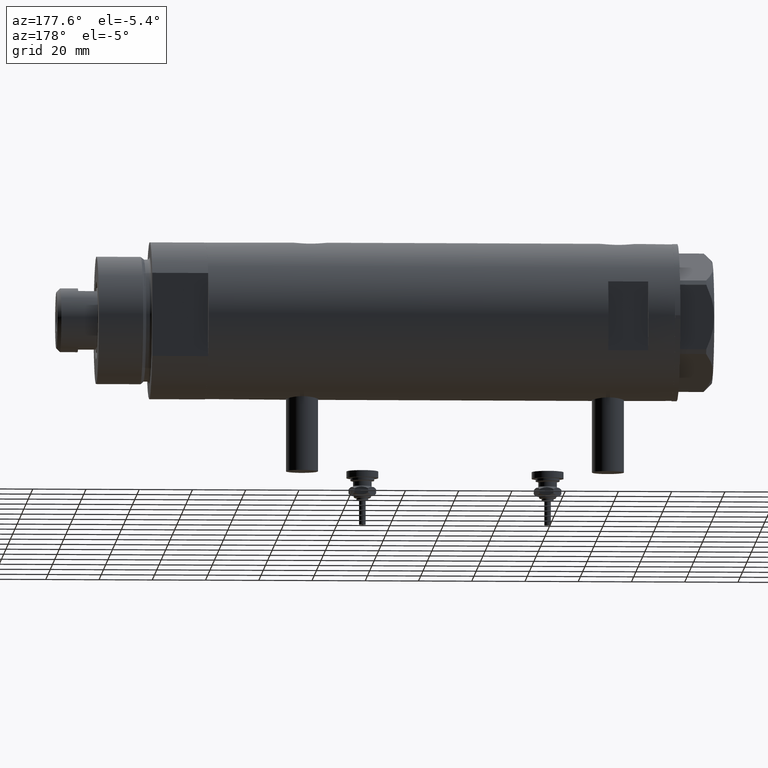
[diagram: clean part render]
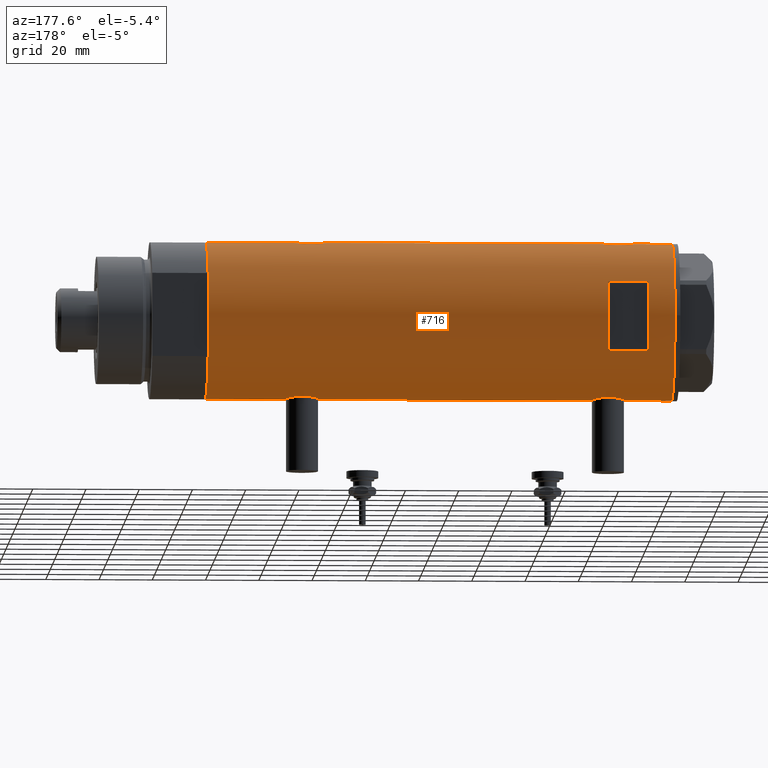
[diagram: same view with one face highlighted and labeled with its STEP entity id]
A machine part, auxiliary view. The second image highlights one B-rep face of the part: STEP entity #716.
In plain terms, the highlighted cylindrical surface (partial cylindrical patch) has radius 29.5 mm, axis along (-1, -0, 0).
Its self-contained STEP definition (entity closure, byte-faithful):
#43 = ORIENTED_EDGE ( 'NONE', *, *, #1118, .F. ) ;
#101 = DIRECTION ( 'NONE',  ( 1.000000000000000000, 0.000000000000000000, 0.000000000000000000 ) ) ;
#120 = CARTESIAN_POINT ( 'NONE',  ( 29.48742029994219038, 0.9867701249543437969, -55.85094507494218163 ) ) ;
#130 = CARTESIAN_POINT ( 'NONE',  ( -29.07940225710134996, 4.969011347753393260, -55.11269734470185000 ) ) ;
#140 = CARTESIAN_POINT ( 'NONE',  ( 29.43668864566816268, 1.946133027943908855, 59.85269087298998869 ) ) ;
#153 = LINE ( 'NONE', #1921, #3605 ) ;
#154 = CARTESIAN_POINT ( 'NONE',  ( 28.65280969280606982, 7.019670864411686750, -51.05213168683109615 ) ) ;
#163 = VERTEX_POINT ( 'NONE', #5422 ) ;
#166 = CARTESIAN_POINT ( 'NONE',  ( -28.86473101544359210, 6.089252369705496548, -49.87667050833969284 ) ) ;
#174 = VECTOR ( 'NONE', #2919, 1000.000000000000000 ) ;
#194 = CARTESIAN_POINT ( 'NONE',  ( -12.96148139681573319, 26.49999999999998934, 77.60000000000002274 ) ) ;
#202 = CARTESIAN_POINT ( 'NONE',  ( 29.08204711695421452, 4.951923910293527520, 61.46183978405700543 ) ) ;
#229 = AXIS2_PLACEMENT_3D ( 'NONE', #2140, #375, #1333 ) ;
#336 = CARTESIAN_POINT ( 'NONE',  ( -29.37021410611213312, 2.770135525807581711, 57.99365930977168659 ) ) ;
#346 = CARTESIAN_POINT ( 'NONE',  ( 28.86328010881651451, 6.097564286278104539, 71.47368290922693745 ) ) ;
#375 = DIRECTION ( 'NONE',  ( 0.000000000000000000, 0.000000000000000000, 1.000000000000000000 ) ) ;
#400 = CARTESIAN_POINT ( 'NONE',  ( -29.49128627113591605, 0.8212788586050359108, 69.80923124908871102 ) ) ;
#410 = CARTESIAN_POINT ( 'NONE',  ( 29.48463566286631377, 0.9832945201638393362, 74.53937451762291744 ) ) ;
#502 = CARTESIAN_POINT ( 'NONE',  ( -29.46640581083894261, 1.421634556901805402, -45.21041108910578998 ) ) ;
#518 = ORIENTED_EDGE ( 'NONE', *, *, #2121, .F. ) ;
#524 = CARTESIAN_POINT ( 'NONE',  ( 29.50000000000000355, 0.000000000000000000, -87.59999999999999432 ) ) ;
#541 = LINE ( 'NONE', #2453, #4188 ) ;
#548 = EDGE_CURVE ( 'NONE', #5663, #1380, #5039, .T. ) ;
#595 = CARTESIAN_POINT ( 'NONE',  ( -28.99817753551065280, 5.423057650933445828, -48.16603848537405952 ) ) ;
#613 = CARTESIAN_POINT ( 'NONE',  ( 29.40165444879503909, 2.418426732012822100, -55.50367056434786406 ) ) ;
#622 = CARTESIAN_POINT ( 'NONE',  ( -29.48289442777307201, 1.024392307325228124, -57.46888222528699686 ) ) ;
#629 = CARTESIAN_POINT ( 'NONE',  ( 29.31463363472445849, 3.333180401682676930, 60.36343155316954068 ) ) ;
#642 = CARTESIAN_POINT ( 'NONE',  ( 28.54372006395177763, 7.450900983269891142, -47.41234264364084794 ) ) ;
#674 = CARTESIAN_POINT ( 'NONE',  ( 28.59328333056173221, 7.258376466535469085, -46.44875332515167798 ) ) ;
#697 = CARTESIAN_POINT ( 'NONE',  ( 28.72066933684370227, 6.738715173607846332, -51.72836955953554394 ) ) ;
#707 = CARTESIAN_POINT ( 'NONE',  ( -29.31451746246149526, 3.307268797680013694, -56.60714841985004142 ) ) ;
#713 = CARTESIAN_POINT ( 'NONE',  ( 28.89325003604224307, 5.958922200807243996, 62.51915213504485536 ) ) ;
#716 = ADVANCED_FACE ( 'NONE', ( #1841, #4225 ), #5507, .T. ) ;
#724 = CARTESIAN_POINT ( 'NONE',  ( 29.14546206473282197, 4.578181670952601756, -42.43943908396708764 ) ) ;
#764 = CARTESIAN_POINT ( 'NONE',  ( -28.87539346372185634, 6.038655803256916421, 65.22452664083074581 ) ) ;
#773 = EDGE_CURVE ( 'NONE', #1599, #4614, #1183, .T. ) ;
#796 = CARTESIAN_POINT ( 'NONE',  ( 28.80468126786726302, 6.368639251981137228, 71.06860510682068366 ) ) ;
#808 = CARTESIAN_POINT ( 'NONE',  ( 29.40387556522357571, 2.422597899785629227, -41.28513960230168323 ) ) ;
#819 = CARTESIAN_POINT ( 'NONE',  ( -29.21045586191520371, 4.133246019522335502, 68.30573901566479833 ) ) ;
#831 = CARTESIAN_POINT ( 'NONE',  ( 29.08308069045667565, 4.954707331652127955, 72.75173628376771262 ) ) ;
#851 = CARTESIAN_POINT ( 'NONE',  ( -29.41782704931130255, 2.208494778271264725, 69.45038297927175108 ) ) ;
#862 = CARTESIAN_POINT ( 'NONE',  ( 28.53073993742369296, 7.499791908386148620, 66.60538051566959439 ) ) ;
#876 = CARTESIAN_POINT ( 'NONE',  ( -29.21113960567726764, 4.128622307952521275, 58.88985466616444597 ) ) ;
#909 = CARTESIAN_POINT ( 'NONE',  ( 29.50000000000000355, -1.363453657738827866E-15, -55.89999999999999858 ) ) ;
#917 = CARTESIAN_POINT ( 'NONE',  ( -29.37156641804198642, 2.775801885207113351, -45.68527430293367786 ) ) ;
#956 = EDGE_CURVE ( 'NONE', #2832, #163, #1191, .T. ) ;
#1001 = EDGE_CURVE ( 'NONE', #4725, #163, #4735, .T. ) ;
#1003 = LINE ( 'NONE', #524, #2620 ) ;
#1015 = ORIENTED_EDGE ( 'NONE', *, *, #773, .F. ) ;
#1038 = VERTEX_POINT ( 'NONE', #909 ) ;
#1044 = CARTESIAN_POINT ( 'NONE',  ( -28.83035796536222861, 6.249836767212684663, -50.88856505377280115 ) ) ;
#1073 = CARTESIAN_POINT ( 'NONE',  ( 29.50000000000000355, 0.000000000000000000, 87.59999999999999432 ) ) ;
#1075 = CARTESIAN_POINT ( 'NONE',  ( -29.45783481716064856, 1.627188261681552284, -57.34836410908944515 ) ) ;
#1081 = CARTESIAN_POINT ( 'NONE',  ( 28.95615051861771860, 5.649234316505054920, 62.14284581253274098 ) ) ;
#1091 = CARTESIAN_POINT ( 'NONE',  ( 28.59637095282950625, 7.245897747848926151, -50.35127374277608681 ) ) ;
#1092 = CARTESIAN_POINT ( 'NONE',  ( -12.96148139681573319, 26.49999999999999645, -87.59999999999999432 ) ) ;
#1094 = CARTESIAN_POINT ( 'NONE',  ( -29.50000000000000355, 3.612706708236066082E-15, 57.34999999999998721 ) ) ;
#1112 = CIRCLE ( 'NONE', #4445, 29.50000000000000355 ) ;
#1118 = EDGE_CURVE ( 'NONE', #1380, #4725, #1003, .T. ) ;
#1124 = DIRECTION ( 'NONE',  ( 0.000000000000000000, 4.625929269271487689E-15, 1.000000000000000000 ) ) ;
#1137 = CARTESIAN_POINT ( 'NONE',  ( -29.07990598238133373, 4.966177878631063081, -47.48314968353489718 ) ) ;
#1145 = CARTESIAN_POINT ( 'NONE',  ( 28.58083212642745252, 7.306745240314150180, 65.39046330563792253 ) ) ;
#1160 = CARTESIAN_POINT ( 'NONE',  ( 29.26187100173485334, 3.763222966830669147, -54.90598258060620651 ) ) ;
#1168 = CARTESIAN_POINT ( 'NONE',  ( -28.96085629491409108, 5.616414220648541011, -48.52800360409992209 ) ) ;
#1169 = LINE ( 'NONE', #2085, #2448 ) ;
#1183 = B_SPLINE_CURVE_WITH_KNOTS ( 'NONE', 3,
 ( #5021, #5594, #2357, #502, #4167, #1868, #4545, #917, #3708, #2446, #4367, #5166, #1137, #595, #1168, #4811, #4752, #2030, #166, #1998, #1044, #4282, #1597, #3378, #2929, #3438, #3836, #5748, #3407, #130, #3859, #5681, #2874, #707, #2533, #2054, #2989, #1962, #1075, #622, #3802, #4786, #2901, #3352 ),
 .UNSPECIFIED., .F., .F.,
 ( 4, 2, 2, 2, 2, 2, 2, 2, 2, 2, 2, 2, 2, 2, 2, 2, 2, 2, 2, 2, 2, 4 ),
 ( 1.932886166535861628E-18, 0.001224749128302346848, 0.001837123692453517237, 0.002449498256604687625, 0.003674247384907027535, 0.004898996513209368311, 0.006123745641511708221, 0.007348494769814048130, 0.007960869333965210279, 0.008573243898116372427, 0.009797993026418693255, 0.01102274215472101582, 0.01224749128302333664, 0.01285986584717448838, 0.01347224041132563666, 0.01469698953962794014, 0.01592173866793024709, 0.01653411323208139536, 0.01714648779623254710, 0.01837123692453484017, 0.01898361148868598497, 0.01959598605283713324 ),
 .UNSPECIFIED. ) ;
#1191 = LINE ( 'NONE', #3134, #2052 ) ;
#1216 = CARTESIAN_POINT ( 'NONE',  ( -29.50000000000000355, -3.685106651658548747E-16, 69.84999999999999432 ) ) ;
#1226 = CARTESIAN_POINT ( 'NONE',  ( 29.47533087885488712, 1.230190383163952239, 74.50252131767059893 ) ) ;
#1243 = CARTESIAN_POINT ( 'NONE',  ( -29.50000000000000355, 0.4142160563134685836, 69.84999999999999432 ) ) ;
#1260 = CARTESIAN_POINT ( 'NONE',  ( 28.89369475765811757, 5.952264974793427754, -43.83049483813753966 ) ) ;
#1274 = CARTESIAN_POINT ( 'NONE',  ( 29.31521205951408504, 3.327945423969213223, 73.83906509227089998 ) ) ;
#1284 = VERTEX_POINT ( 'NONE', #1094 ) ;
#1297 = CARTESIAN_POINT ( 'NONE',  ( -28.94521404191312541, 5.694822755760258204, 61.01666953598656562 ) ) ;
#1302 = ORIENTED_EDGE ( 'NONE', *, *, #1001, .F. ) ;
#1306 = CARTESIAN_POINT ( 'NONE',  ( 29.50000000000000355, 0.2453482418156841816, 74.59999999999999432 ) ) ;
#1311 = ORIENTED_EDGE ( 'NONE', *, *, #3965, .F. ) ;
#1329 = CARTESIAN_POINT ( 'NONE',  ( -28.96085629491409819, 5.616414220648535682, 66.37199639590009781 ) ) ;
#1333 = DIRECTION ( 'NONE',  ( 1.000000000000000000, 0.000000000000000000, 0.000000000000000000 ) ) ;
#1380 = VERTEX_POINT ( 'NONE', #3465 ) ;
#1459 = DIRECTION ( 'NONE',  ( 0.000000000000000000, 0.000000000000000000, 1.000000000000000000 ) ) ;
#1467 = CARTESIAN_POINT ( 'NONE',  ( 28.54350045195475971, 7.451747857568896016, -49.38266002875501925 ) ) ;
#1521 = B_SPLINE_CURVE_WITH_KNOTS ( 'NONE', 3,
 ( #2043, #4688, #120, #4773, #3848, #613, #2435, #5187, #1160, #5670, #1530, #4271, #4800, #5160, #1556, #1952, #697, #154, #2521, #1091, #1923, #1467, #1983, #3824, #642, #674, #3761, #3488, #4035, #4889, #1621, #5814, #1260, #2160, #3997, #3068, #724, #2195, #3521, #808, #4826, #2553, #5847, #1710, #1676, #3091 ),
 .UNSPECIFIED., .F., .F.,
 ( 4, 2, 2, 2, 2, 2, 2, 2, 2, 2, 2, 2, 2, 2, 2, 2, 2, 2, 2, 2, 2, 2, 4 ),
 ( 1.324216582005999085E-18, 0.001471587963626213007, 0.002207381945439318427, 0.002943175927252423846, 0.004414763890878634252, 0.005150557872691738370, 0.005886351854504841621, 0.007357939818131030776, 0.008829527781757219931, 0.009565321763570316244, 0.01030111574538341256, 0.01177270370900960171, 0.01324429167263579260, 0.01471587963626198176, 0.01545167361807507807, 0.01618746759988817091, 0.01692326158170126896, 0.01765905556351436007, 0.01913064352714053881, 0.02060223149076671756, 0.02207381945439289284, 0.02280961343620598047, 0.02354540741801906811 ),
 .UNSPECIFIED. ) ;
#1522 = DIRECTION ( 'NONE',  ( 1.000000000000000000, 0.000000000000000000, 0.000000000000000000 ) ) ;
#1530 = CARTESIAN_POINT ( 'NONE',  ( 29.14416130131007421, 4.572185141625601190, -54.35025411765555248 ) ) ;
#1542 = DIRECTION ( 'NONE',  ( -0.000000000000000000, -0.000000000000000000, -1.000000000000000000 ) ) ;
#1547 = EDGE_CURVE ( 'NONE', #3652, #3164, #1112, .T. ) ;
#1555 = CARTESIAN_POINT ( 'NONE',  ( 29.50000000000000355, -8.867894669064240341E-21, -40.89999999999999858 ) ) ;
#1556 = CARTESIAN_POINT ( 'NONE',  ( 28.89325003604224307, 5.958922200807236891, -52.98084786495515175 ) ) ;
#1597 = CARTESIAN_POINT ( 'NONE',  ( -28.83925158138407596, 6.209208576703542981, -52.12198382868806590 ) ) ;
#1599 = VERTEX_POINT ( 'NONE', #1830 ) ;
#1607 = CARTESIAN_POINT ( 'NONE',  ( 29.40165444879503909, 2.418426732012822544, 59.99632943565210041 ) ) ;
#1621 = CARTESIAN_POINT ( 'NONE',  ( 28.80468126786726657, 6.368639251981141669, -44.43139489317929502 ) ) ;
#1623 = LINE ( 'NONE', #1092, #174 ) ;
#1676 = CARTESIAN_POINT ( 'NONE',  ( 29.50000000000000711, 0.2453482418156837930, -40.89999999999999858 ) ) ;
#1683 = CARTESIAN_POINT ( 'NONE',  ( -28.83925158138408307, 6.209208576703538540, 62.77801617131193979 ) ) ;
#1695 = CARTESIAN_POINT ( 'NONE',  ( 28.95590528945748687, 5.641861744747097340, 72.04764911928884885 ) ) ;
#1710 = CARTESIAN_POINT ( 'NONE',  ( 29.49693976195336020, 0.4910732786937798133, -40.91200905704376112 ) ) ;
#1744 = CARTESIAN_POINT ( 'NONE',  ( -29.43341305963175003, 2.016871341298210663, 57.67025331001193678 ) ) ;
#1773 = CARTESIAN_POINT ( 'NONE',  ( -28.90008889585329044, 5.919338933253946777, 65.61640207058047736 ) ) ;
#1830 = CARTESIAN_POINT ( 'NONE',  ( -29.50000000000000355, -1.989795151372050188E-15, -45.04999999999999005 ) ) ;
#1835 = DIRECTION ( 'NONE',  ( 0.000000000000000000, 0.000000000000000000, 1.000000000000000000 ) ) ;
#1841 = FACE_BOUND ( 'NONE', #5085, .T. ) ;
#1868 = CARTESIAN_POINT ( 'NONE',  ( -29.43187585711095267, 2.013330896687710592, -45.37959139970892863 ) ) ;
#1921 = CARTESIAN_POINT ( 'NONE',  ( 29.50000000000000355, 0.000000000000000000, -87.59999999999999432 ) ) ;
#1923 = CARTESIAN_POINT ( 'NONE',  ( 28.58083212642745607, 7.306745240314146628, -50.10953669436206326 ) ) ;
#1940 = CARTESIAN_POINT ( 'NONE',  ( 12.96148139681573319, 26.49999999999998934, 77.60000000000002274 ) ) ;
#1952 = CARTESIAN_POINT ( 'NONE',  ( 28.77473834757381610, 6.507156404236260627, -52.16162684060293486 ) ) ;
#1962 = CARTESIAN_POINT ( 'NONE',  ( -29.43341305963175714, 2.016871341298211551, -57.22974668998805470 ) ) ;
#1973 = VECTOR ( 'NONE', #4771, 1000.000000000000000 ) ;
#1983 = CARTESIAN_POINT ( 'NONE',  ( 28.53073993742368586, 7.499791908386146844, -48.89461948433040561 ) ) ;
#1998 = CARTESIAN_POINT ( 'NONE',  ( -28.83909818927744340, 6.209925900742502058, -50.48221924548004580 ) ) ;
#2030 = CARTESIAN_POINT ( 'NONE',  ( -28.87539346372184212, 6.038655803256923527, -49.67547335916925988 ) ) ;
#2036 = DIRECTION ( 'NONE',  ( 0.000000000000000000, 0.000000000000000000, 1.000000000000000000 ) ) ;
#2042 = CARTESIAN_POINT ( 'NONE',  ( 0.000000000000000000, 0.000000000000000000, 62.60000000000011511 ) ) ;
#2043 = CARTESIAN_POINT ( 'NONE',  ( 29.50000000000000355, -1.363453657738827866E-15, -55.89999999999999858 ) ) ;
#2052 = VECTOR ( 'NONE', #4957, 1000.000000000000000 ) ;
#2054 = CARTESIAN_POINT ( 'NONE',  ( -29.37021410611214378, 2.770135525807589261, -56.90634069022830488 ) ) ;
#2085 = CARTESIAN_POINT ( 'NONE',  ( 12.96148139681573319, 26.49999999999999645, -87.59999999999999432 ) ) ;
#2111 = CARTESIAN_POINT ( 'NONE',  ( -29.37156641804199708, 2.775801885207113795, 69.21472569706632783 ) ) ;
#2121 = EDGE_CURVE ( 'NONE', #3164, #3284, #1169, .T. ) ;
#2140 = CARTESIAN_POINT ( 'NONE',  ( 0.000000000000000000, 0.000000000000000000, 87.59999999999999432 ) ) ;
#2146 = CARTESIAN_POINT ( 'NONE',  ( 28.59328333056173221, 7.258376466535471749, 69.05124667484832912 ) ) ;
#2160 = CARTESIAN_POINT ( 'NONE',  ( 28.95590528945748687, 5.641861744747095564, -43.45235088071117246 ) ) ;
#2167 = CARTESIAN_POINT ( 'NONE',  ( -29.01875661852155019, 5.308007315944000659, 60.29411629999106736 ) ) ;
#2195 = CARTESIAN_POINT ( 'NONE',  ( 29.26131531204081426, 3.767377415172554311, -41.89654697428871799 ) ) ;
#2226 = CARTESIAN_POINT ( 'NONE',  ( -29.48289442777306846, 1.024392307325223905, 57.43111777471300883 ) ) ;
#2308 = ORIENTED_EDGE ( 'NONE', *, *, #3264, .T. ) ;
#2357 = CARTESIAN_POINT ( 'NONE',  ( -29.49128627113592316, 0.8212788586050391304, -45.09076875091126624 ) ) ;
#2423 = CARTESIAN_POINT ( 'NONE',  ( 29.50000000000000711, 0.4977435627019807241, 59.60000000000000853 ) ) ;
#2434 = CARTESIAN_POINT ( 'NONE',  ( -29.50000000000000355, -3.685106651658548747E-16, 69.84999999999999432 ) ) ;
#2435 = CARTESIAN_POINT ( 'NONE',  ( 29.38138226830144006, 2.652609128011935269, -55.41954601959671578 ) ) ;
#2446 = CARTESIAN_POINT ( 'NONE',  ( -29.25454443288369433, 3.812919888526644652, -46.33102620819088457 ) ) ;
#2448 = VECTOR ( 'NONE', #1542, 1000.000000000000000 ) ;
#2451 = CARTESIAN_POINT ( 'NONE',  ( 28.65280969280607692, 7.019670864411689415, 64.44786831316889675 ) ) ;
#2453 = CARTESIAN_POINT ( 'NONE',  ( -29.50000000000000355, 3.612708057484692393E-15, -87.59999999999999432 ) ) ;
#2477 = EDGE_CURVE ( 'NONE', #2842, #5663, #2985, .T. ) ;
#2521 = CARTESIAN_POINT ( 'NONE',  ( 28.63233008736633778, 7.102474189478610533, -50.82185131238886555 ) ) ;
#2533 = CARTESIAN_POINT ( 'NONE',  ( -29.33379699751449365, 3.132328395749501393, -56.71232164486110605 ) ) ;
#2553 = CARTESIAN_POINT ( 'NONE',  ( 29.47533087885489067, 1.230190383163956458, -40.99747868232940817 ) ) ;
#2590 = CARTESIAN_POINT ( 'NONE',  ( -28.83035796536222861, 6.249836767212677557, 64.01143494622724006 ) ) ;
#2613 = CARTESIAN_POINT ( 'NONE',  ( -28.89816269917384872, 5.930588606439750166, 61.58529684457829489 ) ) ;
#2620 = VECTOR ( 'NONE', #1835, 1000.000000000000000 ) ;
#2641 = CARTESIAN_POINT ( 'NONE',  ( -29.12335997091252793, 4.707903814166463974, 67.73078007378802567 ) ) ;
#2686 = CARTESIAN_POINT ( 'NONE',  ( 28.89369475765812112, 5.952264974793427754, 71.66950516186246034 ) ) ;
#2698 = CARTESIAN_POINT ( 'NONE',  ( 0.000000000000000000, 0.000000000000000000, 77.60000000000002274 ) ) ;
#2700 = CARTESIAN_POINT ( 'NONE',  ( -29.31451746246149881, 3.307268797680012806, 58.29285158014997137 ) ) ;
#2740 = AXIS2_PLACEMENT_3D ( 'NONE', #2907, #1459, #1522 ) ;
#2791 = EDGE_CURVE ( 'NONE', #1599, #1284, #5127, .T. ) ;
#2804 = DIRECTION ( 'NONE',  ( 0.000000000000000000, 0.000000000000000000, 1.000000000000000000 ) ) ;
#2832 = VERTEX_POINT ( 'NONE', #2434 ) ;
#2842 = VERTEX_POINT ( 'NONE', #1555 ) ;
#2858 = EDGE_CURVE ( 'NONE', #3284, #4789, #3035, .T. ) ;
#2874 = CARTESIAN_POINT ( 'NONE',  ( -29.25435602127558354, 3.814249285079252427, -56.26783729533990908 ) ) ;
#2896 = DIRECTION ( 'NONE',  ( 0.000000000000000000, 0.000000000000000000, 1.000000000000000000 ) ) ;
#2900 = EDGE_CURVE ( 'NONE', #5503, #1038, #153, .T. ) ;
#2901 = CARTESIAN_POINT ( 'NONE',  ( -29.50000000000000355, 0.2042768310961517730, -57.55000000000001137 ) ) ;
#2907 = CARTESIAN_POINT ( 'NONE',  ( 0.000000000000000000, 0.000000000000000000, -87.59999999999999432 ) ) ;
#2919 = DIRECTION ( 'NONE',  ( 0.000000000000000000, 0.000000000000000000, 1.000000000000000000 ) ) ;
#2929 = CARTESIAN_POINT ( 'NONE',  ( -28.89816269917384162, 5.930588606439753718, -53.31470315542169658 ) ) ;
#2971 = CARTESIAN_POINT ( 'NONE',  ( 29.17471722935868073, 4.373569479501278501, 61.00231157590981468 ) ) ;
#2985 = LINE ( 'NONE', #4276, #5612 ) ;
#2989 = CARTESIAN_POINT ( 'NONE',  ( -29.38727827406290416, 2.583363936682823603, -56.99478026128668517 ) ) ;
#2994 = CARTESIAN_POINT ( 'NONE',  ( 29.45150476095192360, 1.707859807438202315, 59.79292881343939570 ) ) ;
#3021 = ORIENTED_EDGE ( 'NONE', *, *, #1547, .F. ) ;
#3032 = ORIENTED_EDGE ( 'NONE', *, *, #5235, .F. ) ;
#3035 = CIRCLE ( 'NONE', #5420, 29.50000000000000355 ) ;
#3047 = CARTESIAN_POINT ( 'NONE',  ( -29.38727827406289705, 2.583363936682820938, 57.90521973871332051 ) ) ;
#3068 = CARTESIAN_POINT ( 'NONE',  ( 29.08308069045668631, 4.954707331652121738, -42.74826371623226606 ) ) ;
#3091 = CARTESIAN_POINT ( 'NONE',  ( 29.50000000000000355, -8.867894669064240341E-21, -40.89999999999999858 ) ) ;
#3100 = AXIS2_PLACEMENT_3D ( 'NONE', #3648, #2804, #101 ) ;
#3134 = CARTESIAN_POINT ( 'NONE',  ( -29.50000000000000355, 3.612708057484692393E-15, -87.59999999999999432 ) ) ;
#3164 = VERTEX_POINT ( 'NONE', #1940 ) ;
#3168 = CARTESIAN_POINT ( 'NONE',  ( 28.98787507734748914, 5.475789924529800956, 72.23089043376626250 ) ) ;
#3195 = EDGE_CURVE ( 'NONE', #5924, #4614, #541, .T. ) ;
#3209 = CARTESIAN_POINT ( 'NONE',  ( 29.50000000000000355, 0.000000000000000000, -87.59999999999999432 ) ) ;
#3264 = EDGE_CURVE ( 'NONE', #5503, #5924, #4655, .T. ) ;
#3284 = VERTEX_POINT ( 'NONE', #3415 ) ;
#3290 = ORIENTED_EDGE ( 'NONE', *, *, #3195, .T. ) ;
#3352 = CARTESIAN_POINT ( 'NONE',  ( -29.50000000000000355, 3.612706708267620518E-15, -57.55000000000000426 ) ) ;
#3374 = ORIENTED_EDGE ( 'NONE', *, *, #2858, .F. ) ;
#3378 = CARTESIAN_POINT ( 'NONE',  ( -28.87327190949136835, 6.049038945481238549, -52.92451728205170980 ) ) ;
#3407 = CARTESIAN_POINT ( 'NONE',  ( -29.01875661852155019, 5.308007315944003324, -54.60588370000890279 ) ) ;
#3414 = CARTESIAN_POINT ( 'NONE',  ( 28.77473834757382321, 6.507156404236264180, 63.33837315939705093 ) ) ;
#3415 = CARTESIAN_POINT ( 'NONE',  ( 12.96148139681571898, 26.50000000000000355, 62.60000000000001563 ) ) ;
#3438 = CARTESIAN_POINT ( 'NONE',  ( -28.94521404191311831, 5.694822755760264421, -53.88333046401345428 ) ) ;
#3450 = ORIENTED_EDGE ( 'NONE', *, *, #2477, .F. ) ;
#3465 = CARTESIAN_POINT ( 'NONE',  ( 29.50000000000000355, -8.867894669064240341E-21, 74.59999999999999432 ) ) ;
#3488 = CARTESIAN_POINT ( 'NONE',  ( 28.69800960089390074, 6.832546664705480666, -45.29724969708693294 ) ) ;
#3513 = CARTESIAN_POINT ( 'NONE',  ( 29.14546206473281487, 4.578181670952602644, 73.06056091603291236 ) ) ;
#3521 = CARTESIAN_POINT ( 'NONE',  ( 29.31521205951408859, 3.327945423969223881, -41.66093490772912133 ) ) ;
#3528 = CARTESIAN_POINT ( 'NONE',  ( -28.99931529802531927, 5.412890550536861412, 60.46870800944782331 ) ) ;
#3538 = CARTESIAN_POINT ( 'NONE',  ( 28.53063088452983465, 7.500206755597514707, 67.58828856904807481 ) ) ;
#3555 = CARTESIAN_POINT ( 'NONE',  ( -29.49999999999999645, 0.2042768310961489142, 57.34999999999998010 ) ) ;
#3578 = CARTESIAN_POINT ( 'NONE',  ( -28.83028740688047620, 6.250162243045986443, 63.19353934091626002 ) ) ;
#3605 = VECTOR ( 'NONE', #3760, 1000.000000000000000 ) ;
#3648 = CARTESIAN_POINT ( 'NONE',  ( 0.000000000000000000, 0.000000000000000000, -87.59999999999999432 ) ) ;
#3652 = VERTEX_POINT ( 'NONE', #194 ) ;
#3708 = CARTESIAN_POINT ( 'NONE',  ( -29.33500454540941149, 3.134363790739244759, -45.87737865536319504 ) ) ;
#3710 = ORIENTED_EDGE ( 'NONE', *, *, #2900, .F. ) ;
#3748 = EDGE_LOOP ( 'NONE', ( #2308, #3290, #1015, #4488, #5031, #5058, #1302, #43, #5653, #3450, #1311, #3710 ) ) ;
#3760 = DIRECTION ( 'NONE',  ( 0.000000000000000000, 0.000000000000000000, 1.000000000000000000 ) ) ;
#3761 = CARTESIAN_POINT ( 'NONE',  ( 28.62953349941190240, 7.116010646391488947, -45.98020539076898672 ) ) ;
#3775 = EDGE_CURVE ( 'NONE', #2832, #1284, #5754, .T. ) ;
#3786 = DIRECTION ( 'NONE',  ( 0.000000000000000000, 1.000000000000000000, -4.704334850106595203E-15 ) ) ;
#3802 = CARTESIAN_POINT ( 'NONE',  ( -29.48933702067641249, 0.8192029158410176759, -57.49950722266699898 ) ) ;
#3824 = CARTESIAN_POINT ( 'NONE',  ( 28.53063088452982043, 7.500206755597514707, -47.91171143095193230 ) ) ;
#3836 = CARTESIAN_POINT ( 'NONE',  ( -28.96258065965880846, 5.606121065329696229, -54.07051985068762434 ) ) ;
#3841 = CARTESIAN_POINT ( 'NONE',  ( 28.59637095282950270, 7.245897747848927040, 65.14872625722391319 ) ) ;
#3844 = CARTESIAN_POINT ( 'NONE',  ( 29.50000000000000355, -2.136503572369537054E-15, 59.59999999999999432 ) ) ;
#3848 = CARTESIAN_POINT ( 'NONE',  ( 29.43668864566815913, 1.946133027943908633, -55.64730912700998999 ) ) ;
#3859 = CARTESIAN_POINT ( 'NONE',  ( -29.12318177724206691, 4.709191267490247412, -55.42971050241654751 ) ) ;
#3951 = CARTESIAN_POINT ( 'NONE',  ( -29.33379699751450431, 3.132328395749495620, 58.18767835513889253 ) ) ;
#3965 = EDGE_CURVE ( 'NONE', #1038, #2842, #1521, .T. ) ;
#3975 = CARTESIAN_POINT ( 'NONE',  ( -28.86473101544358499, 6.089252369705491219, 65.02332949166031995 ) ) ;
#3985 = CARTESIAN_POINT ( 'NONE',  ( 28.62953349941190595, 7.116010646391488947, 69.51979460923099907 ) ) ;
#3997 = CARTESIAN_POINT ( 'NONE',  ( 28.98787507734748914, 5.475789924529796515, -43.26910956623376592 ) ) ;
#4005 = CARTESIAN_POINT ( 'NONE',  ( -29.48933702067640539, 0.8192029158410146783, 57.40049277733301381 ) ) ;
#4025 = CARTESIAN_POINT ( 'NONE',  ( 29.49693976195335665, 0.4910732786937788696, 74.58799094295621046 ) ) ;
#4035 = CARTESIAN_POINT ( 'NONE',  ( 28.72322018454529768, 6.726124749058826957, -45.07293147149000845 ) ) ;
#4041 = CARTESIAN_POINT ( 'NONE',  ( -29.33500454540941149, 3.134363790739238542, 69.02262134463678933 ) ) ;
#4063 = DIRECTION ( 'NONE',  ( 1.000000000000000000, -1.776356839400250267E-15, 0.000000000000000000 ) ) ;
#4065 = CARTESIAN_POINT ( 'NONE',  ( -29.12318177724206336, 4.709191267490247412, 59.47028949758345817 ) ) ;
#4077 = CARTESIAN_POINT ( 'NONE',  ( 29.43913092143246146, 1.954882548385545649, 74.35749234733351898 ) ) ;
#4167 = CARTESIAN_POINT ( 'NONE',  ( -29.45614208737134732, 1.620034288692378199, -45.26011356088388737 ) ) ;
#4188 = VECTOR ( 'NONE', #2036, 1000.000000000000000 ) ;
#4225 = FACE_OUTER_BOUND ( 'NONE', #3748, .T. ) ;
#4254 = CARTESIAN_POINT ( 'NONE',  ( 29.48742029994219394, 0.9867701249543444630, 59.64905492505780416 ) ) ;
#4271 = CARTESIAN_POINT ( 'NONE',  ( 29.08204711695421452, 4.951923910293528408, -54.03816021594297325 ) ) ;
#4276 = CARTESIAN_POINT ( 'NONE',  ( 29.50000000000000355, 0.000000000000000000, -87.59999999999999432 ) ) ;
#4282 = CARTESIAN_POINT ( 'NONE',  ( -28.83028740688047620, 6.250162243045991772, -51.70646065908373856 ) ) ;
#4289 = CARTESIAN_POINT ( 'NONE',  ( 28.63233008736634133, 7.102474189478613198, 64.67814868761114155 ) ) ;
#4314 = CARTESIAN_POINT ( 'NONE',  ( -12.96148139681574030, 26.50000000000000355, 62.60000000000001563 ) ) ;
#4320 = CARTESIAN_POINT ( 'NONE',  ( 29.14416130131008842, 4.572185141625602078, 61.14974588234445463 ) ) ;
#4367 = CARTESIAN_POINT ( 'NONE',  ( -29.21045586191521082, 4.133246019522343495, -46.59426098433518604 ) ) ;
#4406 = CARTESIAN_POINT ( 'NONE',  ( 29.40387556522357571, 2.422597899785625231, 74.21486039769831677 ) ) ;
#4419 = CARTESIAN_POINT ( 'NONE',  ( -29.45783481716065211, 1.627188261681551396, 57.55163589091055343 ) ) ;
#4425 = CARTESIAN_POINT ( 'NONE',  ( 28.54372006395177763, 7.450900983269892031, 68.08765735635913074 ) ) ;
#4443 = CARTESIAN_POINT ( 'NONE',  ( -28.96258065965881912, 5.606121065329691788, 60.82948014931239555 ) ) ;
#4445 = AXIS2_PLACEMENT_3D ( 'NONE', #2698, #4591, #4063 ) ;
#4488 = ORIENTED_EDGE ( 'NONE', *, *, #2791, .T. ) ;
#4506 = CARTESIAN_POINT ( 'NONE',  ( -28.91416466586725420, 5.850419487802255070, 65.80827647633630306 ) ) ;
#4514 = CARTESIAN_POINT ( 'NONE',  ( 28.54350045195475971, 7.451747857568897793, 66.11733997124500206 ) ) ;
#4545 = CARTESIAN_POINT ( 'NONE',  ( -29.41782704931129899, 2.208494778271262948, -45.44961702072823329 ) ) ;
#4591 = DIRECTION ( 'NONE',  ( -0.000000000000000000, -0.000000000000000000, -1.000000000000000000 ) ) ;
#4601 = CARTESIAN_POINT ( 'NONE',  ( -29.50000000000000355, 3.612706708267620518E-15, -57.55000000000000426 ) ) ;
#4614 = VERTEX_POINT ( 'NONE', #4601 ) ;
#4655 = CIRCLE ( 'NONE', #2740, 29.50000000000000355 ) ;
#4687 = CARTESIAN_POINT ( 'NONE',  ( -29.50000000000000355, 3.612708057484692393E-15, -87.59999999999999432 ) ) ;
#4688 = CARTESIAN_POINT ( 'NONE',  ( 29.50000000000000711, 0.4977435627019808351, -55.89999999999999147 ) ) ;
#4725 = VERTEX_POINT ( 'NONE', #1073 ) ;
#4735 = CIRCLE ( 'NONE', #229, 29.50000000000000355 ) ;
#4752 = CARTESIAN_POINT ( 'NONE',  ( -28.90008889585328333, 5.919338933253951218, -49.28359792941950701 ) ) ;
#4771 = DIRECTION ( 'NONE',  ( 0.000000000000000000, 0.000000000000000000, 1.000000000000000000 ) ) ;
#4773 = CARTESIAN_POINT ( 'NONE',  ( 29.45150476095192360, 1.707859807438201871, -55.70707118656059720 ) ) ;
#4786 = CARTESIAN_POINT ( 'NONE',  ( -29.49787850362430675, 0.4089683628077651623, -57.54001026437015298 ) ) ;
#4789 = VERTEX_POINT ( 'NONE', #4314 ) ;
#4800 = CARTESIAN_POINT ( 'NONE',  ( 29.05056090758568388, 5.132790299589556682, -53.87391726652084145 ) ) ;
#4811 = CARTESIAN_POINT ( 'NONE',  ( -28.91416466586724354, 5.850419487802259511, -49.09172352366371683 ) ) ;
#4817 = CARTESIAN_POINT ( 'NONE',  ( 29.26187100173485334, 3.763222966830670480, 60.59401741939379349 ) ) ;
#4826 = CARTESIAN_POINT ( 'NONE',  ( 29.43913092143246146, 1.954882548385549423, -41.14250765266648813 ) ) ;
#4870 = CARTESIAN_POINT ( 'NONE',  ( -29.25454443288368722, 3.812919888526638879, 68.56897379180909979 ) ) ;
#4889 = CARTESIAN_POINT ( 'NONE',  ( 28.77649569280673703, 6.494415104660911986, -44.64065011183377152 ) ) ;
#4894 = CARTESIAN_POINT ( 'NONE',  ( -28.83909818927744695, 6.209925900742497618, 64.41778075451992436 ) ) ;
#4921 = CARTESIAN_POINT ( 'NONE',  ( -29.43187585711094911, 2.013330896687708815, 69.52040860029104863 ) ) ;
#4957 = DIRECTION ( 'NONE',  ( 0.000000000000000000, 0.000000000000000000, 1.000000000000000000 ) ) ;
#4966 = CARTESIAN_POINT ( 'NONE',  ( 28.77649569280672992, 6.494415104660914650, 70.85934988816623559 ) ) ;
#4981 = CARTESIAN_POINT ( 'NONE',  ( -29.07940225710135351, 4.969011347753393260, 59.78730265529816990 ) ) ;
#5021 = CARTESIAN_POINT ( 'NONE',  ( -29.50000000000000355, -1.989795151372050188E-15, -45.04999999999999005 ) ) ;
#5031 = ORIENTED_EDGE ( 'NONE', *, *, #3775, .F. ) ;
#5039 = B_SPLINE_CURVE_WITH_KNOTS ( 'NONE', 3,
 ( #5635, #2423, #4254, #2994, #140, #1607, #5174, #629, #4817, #2971, #4320, #202, #5688, #1081, #713, #3414, #5241, #2451, #4289, #3841, #1145, #4514, #862, #3538, #4425, #2146, #3985, #5776, #5804, #4966, #796, #346, #2686, #1695, #3168, #831, #3513, #5386, #1274, #4406, #4077, #1226, #410, #4025, #1306, #5330 ),
 .UNSPECIFIED., .F., .F.,
 ( 4, 2, 2, 2, 2, 2, 2, 2, 2, 2, 2, 2, 2, 2, 2, 2, 2, 2, 2, 2, 2, 2, 4 ),
 ( 2.075019889373263572E-18, 0.001471587963626213007, 0.002207381945439318427, 0.002943175927252423846, 0.004414763890878631650, 0.005150557872691736636, 0.005886351854504842489, 0.007357939818131036848, 0.008829527781757228605, 0.009565321763570345734, 0.01030111574538346113, 0.01177270370900965375, 0.01324429167263584638, 0.01471587963626204074, 0.01545167361807513358, 0.01618746759988822989, 0.01692326158170132794, 0.01765905556351441905, 0.01913064352714058391, 0.02060223149076674184, 0.02207381945439290671, 0.02280961343620598394, 0.02354540741801906811 ),
 .UNSPECIFIED. ) ;
#5058 = ORIENTED_EDGE ( 'NONE', *, *, #956, .T. ) ;
#5085 = EDGE_LOOP ( 'NONE', ( #3032, #3374, #518, #3021 ) ) ;
#5127 = LINE ( 'NONE', #4687, #1973 ) ;
#5160 = CARTESIAN_POINT ( 'NONE',  ( 28.95615051861771860, 5.649234316505054032, -53.35715418746725192 ) ) ;
#5166 = CARTESIAN_POINT ( 'NONE',  ( -29.12335997091253148, 4.707903814166472856, -47.16921992621198001 ) ) ;
#5174 = CARTESIAN_POINT ( 'NONE',  ( 29.38138226830143651, 2.652609128011935713, 60.08045398040327001 ) ) ;
#5187 = CARTESIAN_POINT ( 'NONE',  ( 29.31463363472445849, 3.333180401682678262, -55.13656844683045222 ) ) ;
#5235 = EDGE_CURVE ( 'NONE', #4789, #3652, #1623, .T. ) ;
#5241 = CARTESIAN_POINT ( 'NONE',  ( 28.72066933684369516, 6.738715173607845443, 63.77163044046444185 ) ) ;
#5318 = CARTESIAN_POINT ( 'NONE',  ( -29.07990598238132662, 4.966177878631055087, 67.41685031646507298 ) ) ;
#5330 = CARTESIAN_POINT ( 'NONE',  ( 29.50000000000000355, -8.867894669064240341E-21, 74.59999999999999432 ) ) ;
#5348 = CARTESIAN_POINT ( 'NONE',  ( -29.46640581083894261, 1.421634556901801627, 69.68958891089418728 ) ) ;
#5376 = CARTESIAN_POINT ( 'NONE',  ( -29.50000000000000355, 3.612706708236066082E-15, 57.34999999999998721 ) ) ;
#5386 = CARTESIAN_POINT ( 'NONE',  ( 29.26131531204080360, 3.767377415172555644, 73.60345302571126069 ) ) ;
#5420 = AXIS2_PLACEMENT_3D ( 'NONE', #2042, #1124, #3786 ) ;
#5421 = CARTESIAN_POINT ( 'NONE',  ( -29.50000000000000355, 3.612708057484692393E-15, -87.59999999999999432 ) ) ;
#5422 = CARTESIAN_POINT ( 'NONE',  ( -29.50000000000000355, 3.612708057484692393E-15, 87.59999999999999432 ) ) ;
#5436 = CARTESIAN_POINT ( 'NONE',  ( -28.99817753551064925, 5.423057650933436058, 66.73396151462593195 ) ) ;
#5503 = VERTEX_POINT ( 'NONE', #3209 ) ;
#5507 = CYLINDRICAL_SURFACE ( 'NONE', #3100, 29.50000000000000355 ) ;
#5594 = CARTESIAN_POINT ( 'NONE',  ( -29.50000000000000711, 0.4142160563134685836, -45.04999999999999716 ) ) ;
#5612 = VECTOR ( 'NONE', #2896, 1000.000000000000000 ) ;
#5635 = CARTESIAN_POINT ( 'NONE',  ( 29.50000000000000355, -2.136503572369537054E-15, 59.59999999999999432 ) ) ;
#5653 = ORIENTED_EDGE ( 'NONE', *, *, #548, .F. ) ;
#5663 = VERTEX_POINT ( 'NONE', #3844 ) ;
#5670 = CARTESIAN_POINT ( 'NONE',  ( 29.17471722935868428, 4.373569479501278501, -54.49768842409016401 ) ) ;
#5681 = CARTESIAN_POINT ( 'NONE',  ( -29.21113960567726409, 4.128622307952523052, -56.01014533383550997 ) ) ;
#5688 = CARTESIAN_POINT ( 'NONE',  ( 29.05056090758569098, 5.132790299589558458, 61.62608273347917276 ) ) ;
#5748 = CARTESIAN_POINT ( 'NONE',  ( -28.99931529802529795, 5.412890550536865852, -54.43129199055216816 ) ) ;
#5754 = B_SPLINE_CURVE_WITH_KNOTS ( 'NONE', 3,
 ( #1216, #1243, #400, #5348, #5767, #4921, #851, #2111, #4041, #4870, #819, #2641, #5318, #5436, #1329, #4506, #1773, #764, #3975, #4894, #2590, #3578, #1683, #5794, #2613, #1297, #4443, #3528, #2167, #4981, #4065, #876, #5852, #2700, #3951, #336, #3047, #1744, #4419, #2226, #4005, #5824, #3555, #5376 ),
 .UNSPECIFIED., .F., .F.,
 ( 4, 2, 2, 2, 2, 2, 2, 2, 2, 2, 2, 2, 2, 2, 2, 2, 2, 2, 2, 2, 2, 4 ),
 ( 3.579711039243685734E-19, 0.001224749128302344029, 0.001837123692453515285, 0.002449498256604686758, 0.003674247384907013657, 0.004898996513209340556, 0.006123745641511668322, 0.007348494769813995221, 0.007960869333965159972, 0.008573243898116323855, 0.009797993026418609988, 0.01102274215472089959, 0.01224749128302318572, 0.01285986584717433920, 0.01347224041132549614, 0.01469698953962781697, 0.01592173866793014300, 0.01653411323208130515, 0.01714648779623246730, 0.01837123692453479160, 0.01898361148868595721, 0.01959598605283711936 ),
 .UNSPECIFIED. ) ;
#5767 = CARTESIAN_POINT ( 'NONE',  ( -29.45614208737133310, 1.620034288692375535, 69.63988643911609699 ) ) ;
#5776 = CARTESIAN_POINT ( 'NONE',  ( 28.69800960089391140, 6.832546664705483330, 70.20275030291304574 ) ) ;
#5794 = CARTESIAN_POINT ( 'NONE',  ( -28.87327190949138256, 6.049038945481236773, 61.97548271794827457 ) ) ;
#5804 = CARTESIAN_POINT ( 'NONE',  ( 28.72322018454531189, 6.726124749058830510, 70.42706852850997734 ) ) ;
#5814 = CARTESIAN_POINT ( 'NONE',  ( 28.86328010881652872, 6.097564286278109869, -44.02631709077303412 ) ) ;
#5824 = CARTESIAN_POINT ( 'NONE',  ( -29.49787850362430319, 0.4089683628077612210, 57.35998973562983849 ) ) ;
#5847 = CARTESIAN_POINT ( 'NONE',  ( 29.48463566286631377, 0.9832945201638395583, -40.96062548237706835 ) ) ;
#5852 = CARTESIAN_POINT ( 'NONE',  ( -29.25435602127558354, 3.814249285079249319, 58.63216270466007529 ) ) ;
#5924 = VERTEX_POINT ( 'NONE', #5421 ) ;